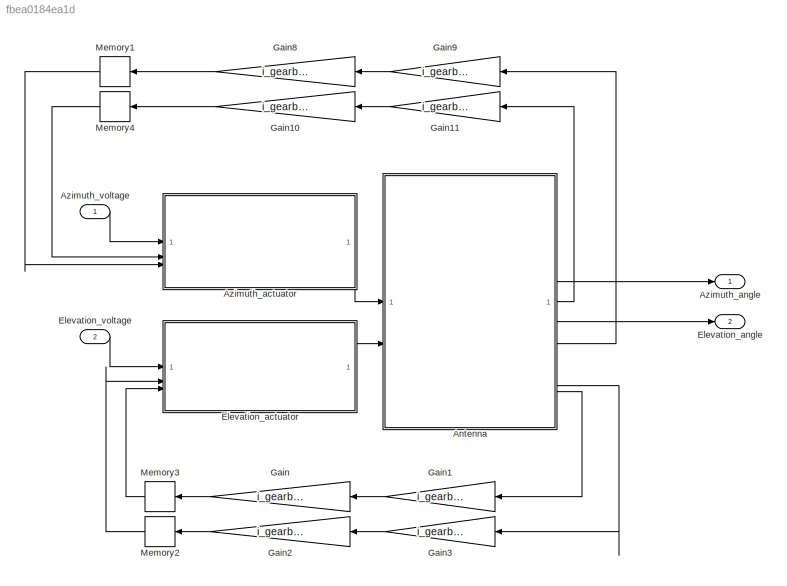
MODEL slx_fbea0184ea1d
KIND model
CONFIG AbsTol = auto
CONFIG EnableMultiTasking = off
CONFIG FixedStep = 0.001
CONFIG MaxStep = auto
CONFIG MinStep = auto
CONFIG RelTol = 1e-3
CONFIG SampleTimeConstraint = Unconstrained
CONFIG SolverName = VariableStepAuto
CONFIG StartTime = 0.0
CONFIG StopTime = 10.0
BLOCK [SubSystem] Antenna
  MinAlgLoopOccurrences = on
  ReferencedSubsystem = Antenna
  TreatAsAtomicUnit = on
BLOCK [SubSystem] Azimuth_actuator
  MinAlgLoopOccurrences = on
  ReferencedSubsystem = Actuator
  TreatAsAtomicUnit = on
BLOCK [Outport] Azimuth_angle
BLOCK [Inport] Azimuth_voltage
BLOCK [SubSystem] Elevation_actuator
  MinAlgLoopOccurrences = on
  ReferencedSubsystem = Actuator
  TreatAsAtomicUnit = on
BLOCK [Outport] Elevation_angle
  Port = 2
BLOCK [Inport] Elevation_voltage
  Port = 2
BLOCK [Gain] Gain
  Gain = i_gearbox_1
  NameLocation = top
BLOCK [Gain] Gain1
  Gain = i_gearbox_2
  NameLocation = top
BLOCK [Gain] Gain10
  Gain = i_gearbox_1
  NameLocation = top
BLOCK [Gain] Gain11
  Gain = i_gearbox_2
  NameLocation = top
BLOCK [Gain] Gain2
  Gain = i_gearbox_1
  NameLocation = top
BLOCK [Gain] Gain3
  Gain = i_gearbox_2
  NameLocation = top
BLOCK [Gain] Gain8
  Gain = i_gearbox_1
  NameLocation = top
BLOCK [Gain] Gain9
  Gain = i_gearbox_2
  NameLocation = top
BLOCK [Memory] Memory1
  InheritSampleTime = on
BLOCK [Memory] Memory2
  InheritSampleTime = on
BLOCK [Memory] Memory3
  InheritSampleTime = on
BLOCK [Memory] Memory4
  InheritSampleTime = on
LINE Antenna:1 -> Gain11:1
LINE Antenna:2 -> Gain9:1
LINE Antenna:3 -> Azimuth_angle:1
LINE Antenna:4 -> Elevation_angle:1
LINE Antenna:5 -> Gain3:1
LINE Antenna:6 -> Gain1:1
LINE Azimuth_actuator:1 -> Antenna:1
LINE Azimuth_voltage:1 -> Azimuth_actuator:1
LINE Elevation_actuator:1 -> Antenna:2
LINE Elevation_voltage:1 -> Elevation_actuator:1
LINE Gain10:1 -> Memory4:1
LINE Gain11:1 -> Gain10:1
LINE Gain1:1 -> Gain:1
LINE Gain2:1 -> Memory2:1
LINE Gain3:1 -> Gain2:1
LINE Gain8:1 -> Memory1:1
LINE Gain9:1 -> Gain8:1
LINE Gain:1 -> Memory3:1
LINE Memory1:1 -> Azimuth_actuator:3
LINE Memory2:1 -> Elevation_actuator:2
LINE Memory3:1 -> Elevation_actuator:3
LINE Memory4:1 -> Azimuth_actuator:2
